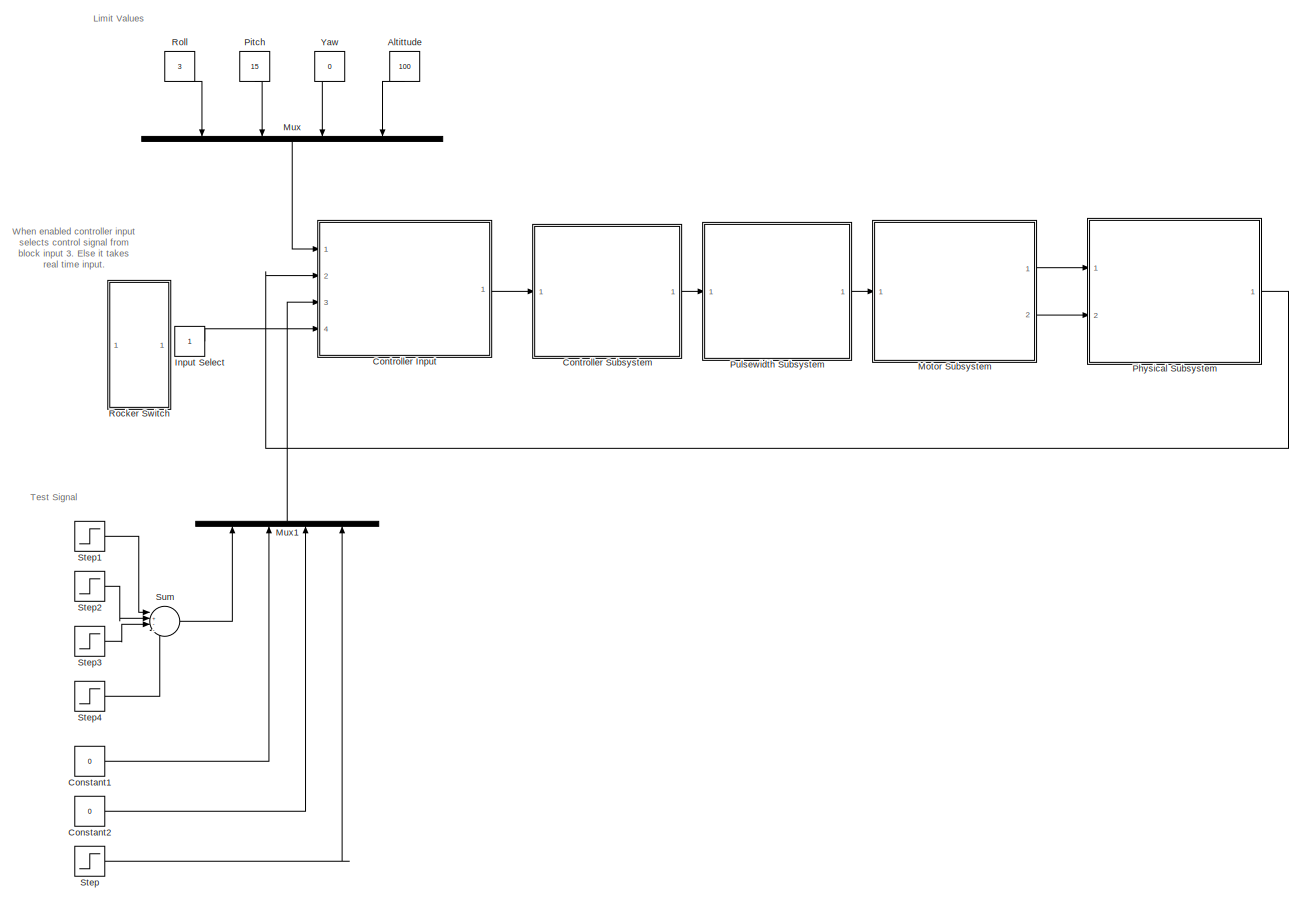
[diagram: root canvas - part 1/1, most of the canvas]
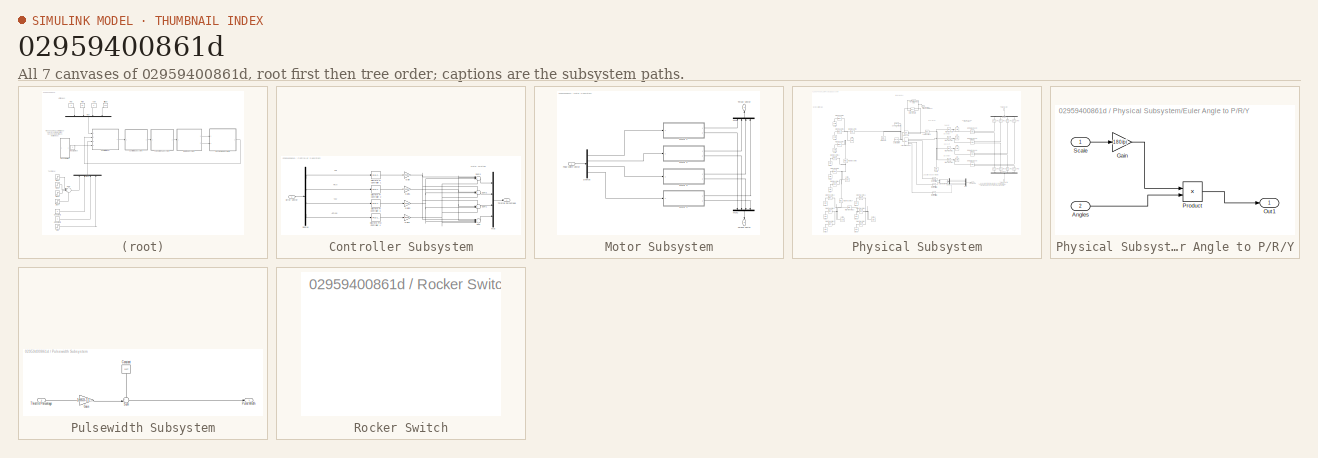
[diagram: thumbnail index - all 7 canvases of the model, root first then tree order]
MODEL slx_02959400861d
KIND model
CONFIG AbsTol = auto
CONFIG EnableMultiTasking = off
CONFIG FixedStep = auto
CONFIG MaxStep = auto
CONFIG MinStep = auto
CONFIG RelTol = 1e-3
CONFIG SampleTimeConstraint = Unconstrained
CONFIG Solver = VariableStepAuto
CONFIG SolverName = VariableStepAuto
CONFIG StartTime = 0.0
CONFIG StopTime = 50
BLOCK [Constant] Altittude
  Value = 100
BLOCK [Constant] Constant1
  Value = 0
BLOCK [Constant] Constant2
  Value = 0
BLOCK [ModelReference] Controller Input
  ModelNameDialog = Input_Model.slx
  ModelReferenceVersion = 1.20
  Ports = [4, 1]
  Variant = off
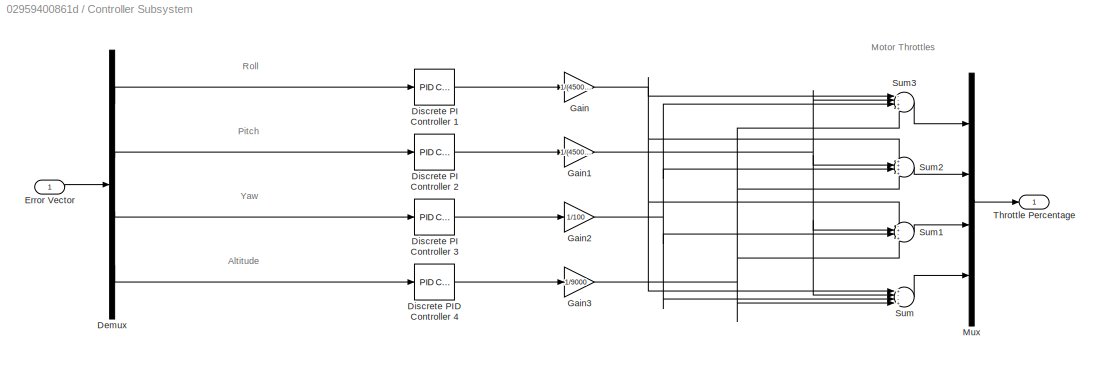
BLOCK [SubSystem] Controller Subsystem
  Ports = [1, 1]
  RequestExecContextInheritance = off
  Variant = off
BLOCK [Demux] Controller Subsystem/Demux
  DisplayOption = bar
  Ports = [1, 4]
BLOCK [Reference] Controller Subsystem/Discrete PI Controller 1  REF=simulink/Continuous/PID Controller
  Ports = [1, 1]
  SourceBlock = simulink/Continuous/PID Controller
  SourceType = PID 1dof
BLOCK [Reference] Controller Subsystem/Discrete PI Controller 2  REF=simulink/Continuous/PID Controller
  Commented = through
  Ports = [1, 1]
  SourceBlock = simulink/Continuous/PID Controller
  SourceType = PID 1dof
BLOCK [Reference] Controller Subsystem/Discrete PI Controller 3  REF=simulink/Continuous/PID Controller
  Commented = on
  Ports = [1, 1]
  SourceBlock = simulink/Continuous/PID Controller
  SourceType = PID 1dof
BLOCK [Reference] Controller Subsystem/Discrete PID Controller 4  REF=simulink/Continuous/PID Controller
  Ports = [1, 1]
  SourceBlock = simulink/Continuous/PID Controller
  SourceType = PID 1dof
BLOCK [Inport] Controller Subsystem/Error Vector
  IconDisplay = Port number
BLOCK [Gain] Controller Subsystem/Gain
  Gain = 1/(4500*2)
  OutDataTypeStr = Inherit: Inherit via internal rule
  ParamDataTypeStr = Inherit: Inherit via internal rule
  SaturateOnIntegerOverflow = off
BLOCK [Gain] Controller Subsystem/Gain1
  Commented = on
  Gain = 1/(4500*2)
  OutDataTypeStr = Inherit: Inherit via internal rule
  ParamDataTypeStr = Inherit: Inherit via internal rule
  SaturateOnIntegerOverflow = off
BLOCK [Gain] Controller Subsystem/Gain2
  Commented = on
  Gain = 1/100
  OutDataTypeStr = Inherit: Inherit via internal rule
  ParamDataTypeStr = Inherit: Inherit via internal rule
  SaturateOnIntegerOverflow = off
BLOCK [Gain] Controller Subsystem/Gain3
  Gain = 1/9000
  OutDataTypeStr = Inherit: Inherit via internal rule
  ParamDataTypeStr = Inherit: Inherit via internal rule
  SaturateOnIntegerOverflow = off
BLOCK [Mux] Controller Subsystem/Mux
  DisplayOption = bar
  Ports = [4, 1]
BLOCK [Sum] Controller Subsystem/Sum
  IconShape = round
  InputSameDT = off
  Inputs = +--+
  OutDataTypeStr = Inherit: Inherit via internal rule
  Ports = [4, 1]
  SaturateOnIntegerOverflow = off
BLOCK [Sum] Controller Subsystem/Sum1
  IconShape = round
  InputSameDT = off
  Inputs = -+-+
  OutDataTypeStr = Inherit: Inherit via internal rule
  Ports = [4, 1]
  SaturateOnIntegerOverflow = off
BLOCK [Sum] Controller Subsystem/Sum2
  IconShape = round
  InputSameDT = off
  Inputs = ++++
  OutDataTypeStr = Inherit: Inherit via internal rule
  Ports = [4, 1]
  SaturateOnIntegerOverflow = off
BLOCK [Sum] Controller Subsystem/Sum3
  IconShape = round
  InputSameDT = off
  Inputs = --++
  OutDataTypeStr = Inherit: Inherit via internal rule
  Ports = [4, 1]
  SaturateOnIntegerOverflow = off
BLOCK [Outport] Controller Subsystem/Throttle Percentage
  IconDisplay = Port number
BLOCK [Constant] Input Select
BLOCK [SubSystem] Motor Subsystem
  Ports = [1, 2]
  RequestExecContextInheritance = off
  Variant = off
BLOCK [Demux] Motor Subsystem/Demux
  DisplayOption = bar
  Ports = [1, 4]
BLOCK [ModelReference] Motor Subsystem/Motor 1
  ModelNameDialog = motor_characterization.slx
  ModelReferenceVersion = 1.11
  Ports = [1, 2]
  Variant = off
BLOCK [ModelReference] Motor Subsystem/Motor 2
  ModelNameDialog = motor_characterization.slx
  ModelReferenceVersion = 1.11
  Ports = [1, 2]
  Variant = off
BLOCK [ModelReference] Motor Subsystem/Motor 3
  ModelNameDialog = motor_characterization.slx
  ModelReferenceVersion = 1.11
  Ports = [1, 2]
  Variant = off
BLOCK [ModelReference] Motor Subsystem/Motor 4
  ModelNameDialog = motor_characterization.slx
  ModelReferenceVersion = 1.11
  Ports = [1, 2]
  Variant = off
BLOCK [Mux] Motor Subsystem/Mux
  DisplayOption = bar
  Ports = [4, 1]
BLOCK [Mux] Motor Subsystem/Mux1
  DisplayOption = bar
  Ports = [4, 1]
BLOCK [Inport] Motor Subsystem/Pulse Width Vector
  IconDisplay = Port number
BLOCK [Outport] Motor Subsystem/Thrust Vector
  IconDisplay = Port number
BLOCK [Outport] Motor Subsystem/Torque Vector
  IconDisplay = Port number
  Port = 2
BLOCK [Mux] Mux
  DisplayOption = bar
  Ports = [4, 1]
BLOCK [Mux] Mux1
  DisplayOption = bar
  Ports = [4, 1]
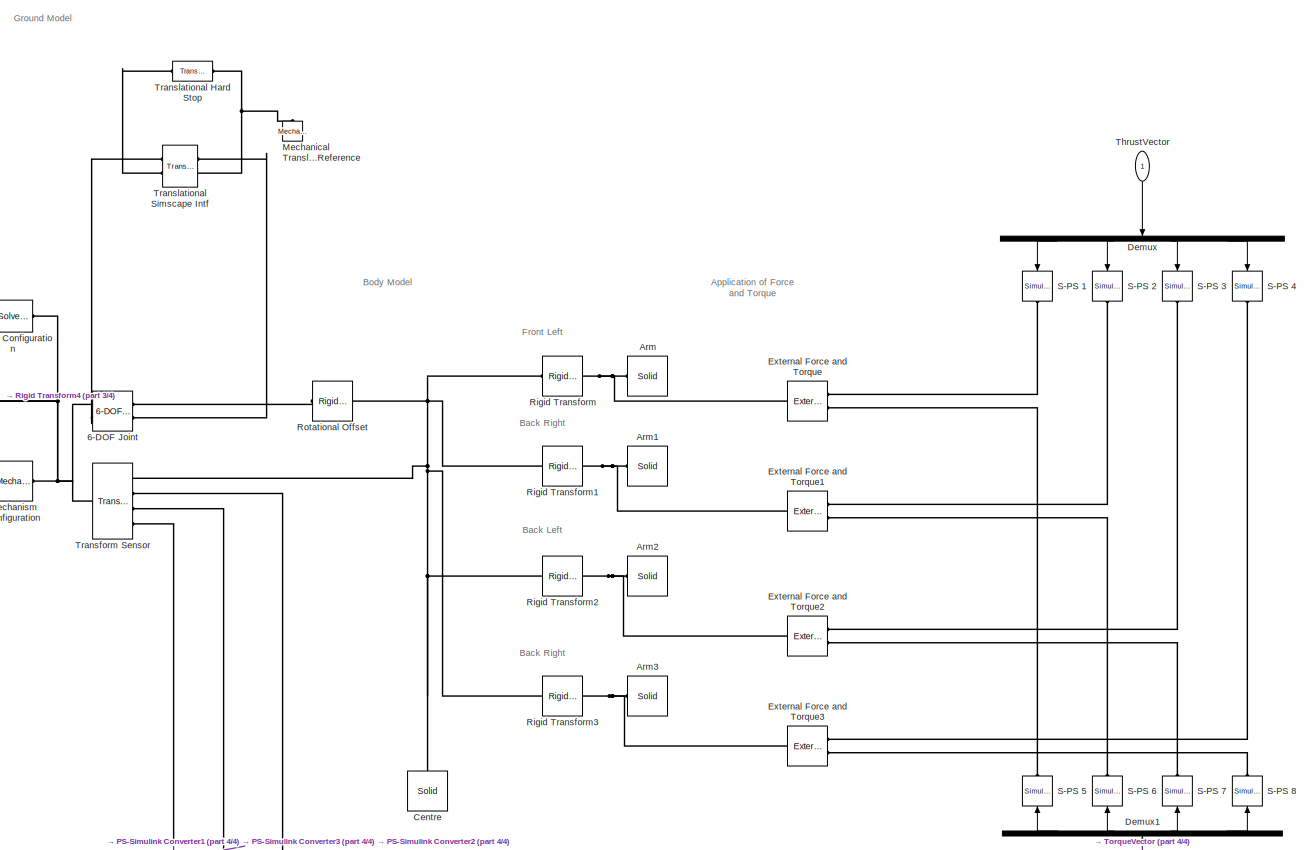
[diagram: Physical Subsystem - part 1/4, top right region]
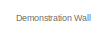
[diagram: Physical Subsystem - part 2/4, top left region]
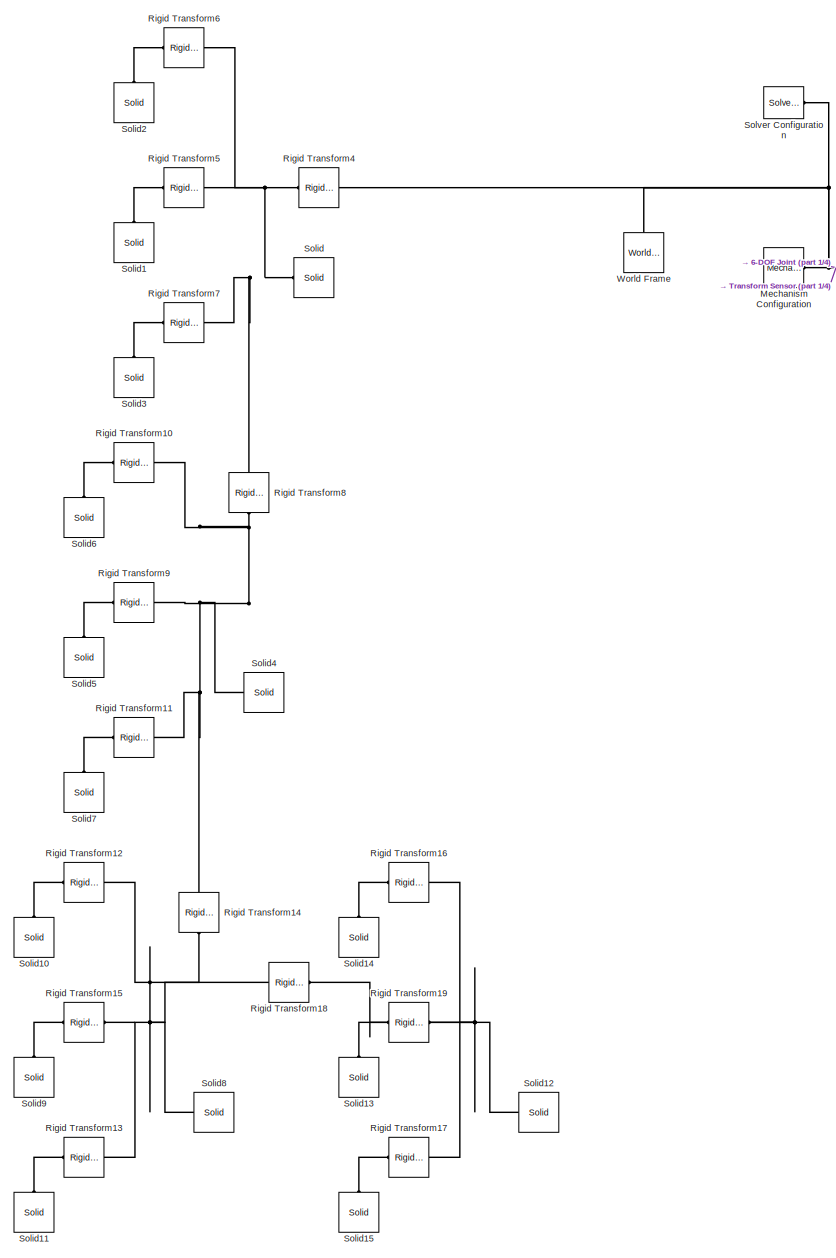
[diagram: Physical Subsystem - part 3/4, left side, full height]
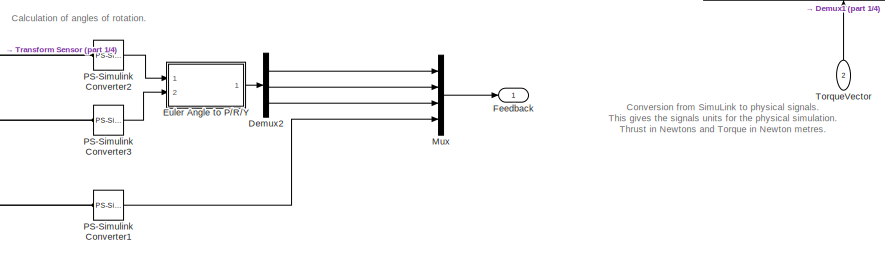
[diagram: Physical Subsystem - part 4/4, middle right region]
BLOCK [SubSystem] Physical Subsystem
  Ports = [2, 1]
  RequestExecContextInheritance = off
  Variant = off
BLOCK [Reference] Physical Subsystem/6-DOF Joint  REF=sm_lib/Joints/6-DOF Joint
  Ports = [0, 0, 0, 0, 0, 2, 2]
  SourceBlock = sm_lib/Joints/6-DOF Joint
  SourceType = 6-DOF Joint
BLOCK [Reference] Physical Subsystem/Arm  REF=sm_lib/Body Elements/Solid
  Ports = [0, 0, 0, 0, 0, 0, 1]
  SourceBlock = sm_lib/Body Elements/Solid
  SourceType = Solid
BLOCK [Reference] Physical Subsystem/Arm1  REF=sm_lib/Body Elements/Solid
  Ports = [0, 0, 0, 0, 0, 0, 1]
  SourceBlock = sm_lib/Body Elements/Solid
  SourceType = Solid
BLOCK [Reference] Physical Subsystem/Arm2  REF=sm_lib/Body Elements/Solid
  Ports = [0, 0, 0, 0, 0, 0, 1]
  SourceBlock = sm_lib/Body Elements/Solid
  SourceType = Solid
BLOCK [Reference] Physical Subsystem/Arm3  REF=sm_lib/Body Elements/Solid
  Ports = [0, 0, 0, 0, 0, 0, 1]
  SourceBlock = sm_lib/Body Elements/Solid
  SourceType = Solid
BLOCK [Reference] Physical Subsystem/Centre  REF=sm_lib/Body Elements/Solid
  Ports = [0, 0, 0, 0, 0, 0, 1]
  SourceBlock = sm_lib/Body Elements/Solid
  SourceType = Solid
BLOCK [Demux] Physical Subsystem/Demux
  DisplayOption = bar
  Ports = [1, 4]
BLOCK [Demux] Physical Subsystem/Demux1
  DisplayOption = bar
  Ports = [1, 4]
BLOCK [Demux] Physical Subsystem/Demux2
  DisplayOption = bar
  Outputs = 3
  Ports = [1, 3]
BLOCK [SubSystem] Physical Subsystem/Euler Angle to P//R//Y
  Ports = [2, 1]
  RequestExecContextInheritance = off
  Variant = off
BLOCK [Inport] Physical Subsystem/Euler Angle to P//R//Y/Angles
  IconDisplay = Port number
  Port = 2
BLOCK [Gain] Physical Subsystem/Euler Angle to P//R//Y/Gain
  Gain = 180/pi
  OutDataTypeStr = Inherit: Inherit via internal rule
  ParamDataTypeStr = Inherit: Inherit via internal rule
  SaturateOnIntegerOverflow = off
BLOCK [Outport] Physical Subsystem/Euler Angle to P//R//Y/Out1
  IconDisplay = Port number
BLOCK [Product] Physical Subsystem/Euler Angle to P//R//Y/Product
  InputSameDT = off
  OutDataTypeStr = Inherit: Inherit via internal rule
  Ports = [2, 1]
  RndMeth = Floor
  SaturateOnIntegerOverflow = off
BLOCK [Inport] Physical Subsystem/Euler Angle to P//R//Y/Scale
  IconDisplay = Port number
BLOCK [Reference] Physical Subsystem/External Force and Torque  REF=sm_lib/Forces and
Torques/External Force
and Torque
  Ports = [0, 0, 0, 0, 0, 2, 1]
  SourceBlock = sm_lib/Forces and\nTorques/External Force\nand Torque
  SourceType = External Force\nand Torque
BLOCK [Reference] Physical Subsystem/External Force and Torque1  REF=sm_lib/Forces and
Torques/External Force
and Torque
  Ports = [0, 0, 0, 0, 0, 2, 1]
  SourceBlock = sm_lib/Forces and\nTorques/External Force\nand Torque
  SourceType = External Force\nand Torque
BLOCK [Reference] Physical Subsystem/External Force and Torque2  REF=sm_lib/Forces and
Torques/External Force
and Torque
  Ports = [0, 0, 0, 0, 0, 2, 1]
  SourceBlock = sm_lib/Forces and\nTorques/External Force\nand Torque
  SourceType = External Force\nand Torque
BLOCK [Reference] Physical Subsystem/External Force and Torque3  REF=sm_lib/Forces and
Torques/External Force
and Torque
  Ports = [0, 0, 0, 0, 0, 2, 1]
  SourceBlock = sm_lib/Forces and\nTorques/External Force\nand Torque
  SourceType = External Force\nand Torque
BLOCK [Outport] Physical Subsystem/Feedback
  IconDisplay = Port number
BLOCK [Reference] Physical Subsystem/Mechanical Translational Reference  REF=fl_lib/Mechanical/Translational
Elements/Mechanical
Translational
Reference
  Ports = [0, 0, 0, 0, 0, 1]
  SourceBlock = fl_lib/Mechanical/Translational\nElements/Mechanical\nTranslational\nReference
  SourceType = Mechanical\nTranslational\nReference
BLOCK [Reference] Physical Subsystem/Mechanism Configuration  REF=sm_lib/Utilities/Mechanism
Configuration
  Ports = [0, 0, 0, 0, 0, 0, 1]
  SourceBlock = sm_lib/Utilities/Mechanism\nConfiguration
  SourceType = Mechanism\nConfiguration
BLOCK [Mux] Physical Subsystem/Mux
  DisplayOption = bar
  Ports = [4, 1]
BLOCK [Reference] Physical Subsystem/PS-Simulink Converter1  REF=nesl_utility/PS-Simulink
Converter
  Ports = [0, 1, 0, 0, 0, 1]
  SourceBlock = nesl_utility/PS-Simulink\nConverter
  SourceType = PS-Simulink\nConverter
BLOCK [Reference] Physical Subsystem/PS-Simulink Converter2  REF=nesl_utility/PS-Simulink
Converter
  Ports = [0, 1, 0, 0, 0, 1]
  SourceBlock = nesl_utility/PS-Simulink\nConverter
  SourceType = PS-Simulink\nConverter
BLOCK [Reference] Physical Subsystem/PS-Simulink Converter3  REF=nesl_utility/PS-Simulink
Converter
  Ports = [0, 1, 0, 0, 0, 1]
  SourceBlock = nesl_utility/PS-Simulink\nConverter
  SourceType = PS-Simulink\nConverter
BLOCK [Reference] Physical Subsystem/Rigid Transform  REF=sm_lib/Frames and
Transforms/Rigid
Transform
  Ports = [0, 0, 0, 0, 0, 1, 1]
  SourceBlock = sm_lib/Frames and\nTransforms/Rigid\nTransform
  SourceType = Rigid\nTransform
BLOCK [Reference] Physical Subsystem/Rigid Transform1  REF=sm_lib/Frames and
Transforms/Rigid
Transform
  Ports = [0, 0, 0, 0, 0, 1, 1]
  SourceBlock = sm_lib/Frames and\nTransforms/Rigid\nTransform
  SourceType = Rigid\nTransform
BLOCK [Reference] Physical Subsystem/Rigid Transform10  REF=sm_lib/Frames and
Transforms/Rigid
Transform
  Ports = [0, 0, 0, 0, 0, 1, 1]
  SourceBlock = sm_lib/Frames and\nTransforms/Rigid\nTransform
  SourceType = Rigid\nTransform
BLOCK [Reference] Physical Subsystem/Rigid Transform11  REF=sm_lib/Frames and
Transforms/Rigid
Transform
  Ports = [0, 0, 0, 0, 0, 1, 1]
  SourceBlock = sm_lib/Frames and\nTransforms/Rigid\nTransform
  SourceType = Rigid\nTransform
BLOCK [Reference] Physical Subsystem/Rigid Transform12  REF=sm_lib/Frames and
Transforms/Rigid
Transform
  Ports = [0, 0, 0, 0, 0, 1, 1]
  SourceBlock = sm_lib/Frames and\nTransforms/Rigid\nTransform
  SourceType = Rigid\nTransform
BLOCK [Reference] Physical Subsystem/Rigid Transform13  REF=sm_lib/Frames and
Transforms/Rigid
Transform
  Ports = [0, 0, 0, 0, 0, 1, 1]
  SourceBlock = sm_lib/Frames and\nTransforms/Rigid\nTransform
  SourceType = Rigid\nTransform
BLOCK [Reference] Physical Subsystem/Rigid Transform14  REF=sm_lib/Frames and
Transforms/Rigid
Transform
  Ports = [0, 0, 0, 0, 0, 1, 1]
  SourceBlock = sm_lib/Frames and\nTransforms/Rigid\nTransform
  SourceType = Rigid\nTransform
BLOCK [Reference] Physical Subsystem/Rigid Transform15  REF=sm_lib/Frames and
Transforms/Rigid
Transform
  Ports = [0, 0, 0, 0, 0, 1, 1]
  SourceBlock = sm_lib/Frames and\nTransforms/Rigid\nTransform
  SourceType = Rigid\nTransform
BLOCK [Reference] Physical Subsystem/Rigid Transform16  REF=sm_lib/Frames and
Transforms/Rigid
Transform
  Ports = [0, 0, 0, 0, 0, 1, 1]
  SourceBlock = sm_lib/Frames and\nTransforms/Rigid\nTransform
  SourceType = Rigid\nTransform
BLOCK [Reference] Physical Subsystem/Rigid Transform17  REF=sm_lib/Frames and
Transforms/Rigid
Transform
  Ports = [0, 0, 0, 0, 0, 1, 1]
  SourceBlock = sm_lib/Frames and\nTransforms/Rigid\nTransform
  SourceType = Rigid\nTransform
BLOCK [Reference] Physical Subsystem/Rigid Transform18  REF=sm_lib/Frames and
Transforms/Rigid
Transform
  Ports = [0, 0, 0, 0, 0, 1, 1]
  SourceBlock = sm_lib/Frames and\nTransforms/Rigid\nTransform
  SourceType = Rigid\nTransform
BLOCK [Reference] Physical Subsystem/Rigid Transform19  REF=sm_lib/Frames and
Transforms/Rigid
Transform
  Ports = [0, 0, 0, 0, 0, 1, 1]
  SourceBlock = sm_lib/Frames and\nTransforms/Rigid\nTransform
  SourceType = Rigid\nTransform
BLOCK [Reference] Physical Subsystem/Rigid Transform2  REF=sm_lib/Frames and
Transforms/Rigid
Transform
  Ports = [0, 0, 0, 0, 0, 1, 1]
  SourceBlock = sm_lib/Frames and\nTransforms/Rigid\nTransform
  SourceType = Rigid\nTransform
BLOCK [Reference] Physical Subsystem/Rigid Transform3  REF=sm_lib/Frames and
Transforms/Rigid
Transform
  Ports = [0, 0, 0, 0, 0, 1, 1]
  SourceBlock = sm_lib/Frames and\nTransforms/Rigid\nTransform
  SourceType = Rigid\nTransform
BLOCK [Reference] Physical Subsystem/Rigid Transform4  REF=sm_lib/Frames and
Transforms/Rigid
Transform
  Ports = [0, 0, 0, 0, 0, 1, 1]
  SourceBlock = sm_lib/Frames and\nTransforms/Rigid\nTransform
  SourceType = Rigid\nTransform
BLOCK [Reference] Physical Subsystem/Rigid Transform5  REF=sm_lib/Frames and
Transforms/Rigid
Transform
  Ports = [0, 0, 0, 0, 0, 1, 1]
  SourceBlock = sm_lib/Frames and\nTransforms/Rigid\nTransform
  SourceType = Rigid\nTransform
BLOCK [Reference] Physical Subsystem/Rigid Transform6  REF=sm_lib/Frames and
Transforms/Rigid
Transform
  Ports = [0, 0, 0, 0, 0, 1, 1]
  SourceBlock = sm_lib/Frames and\nTransforms/Rigid\nTransform
  SourceType = Rigid\nTransform
BLOCK [Reference] Physical Subsystem/Rigid Transform7  REF=sm_lib/Frames and
Transforms/Rigid
Transform
  Ports = [0, 0, 0, 0, 0, 1, 1]
  SourceBlock = sm_lib/Frames and\nTransforms/Rigid\nTransform
  SourceType = Rigid\nTransform
BLOCK [Reference] Physical Subsystem/Rigid Transform8  REF=sm_lib/Frames and
Transforms/Rigid
Transform
  Ports = [0, 0, 0, 0, 0, 1, 1]
  SourceBlock = sm_lib/Frames and\nTransforms/Rigid\nTransform
  SourceType = Rigid\nTransform
BLOCK [Reference] Physical Subsystem/Rigid Transform9  REF=sm_lib/Frames and
Transforms/Rigid
Transform
  Ports = [0, 0, 0, 0, 0, 1, 1]
  SourceBlock = sm_lib/Frames and\nTransforms/Rigid\nTransform
  SourceType = Rigid\nTransform
BLOCK [Reference] Physical Subsystem/Rotational Offset  REF=sm_lib/Frames and
Transforms/Rigid
Transform
  Ports = [0, 0, 0, 0, 0, 1, 1]
  SourceBlock = sm_lib/Frames and\nTransforms/Rigid\nTransform
  SourceType = Rigid\nTransform
BLOCK [Reference] Physical Subsystem/S-PS 1  REF=nesl_utility/Simulink-PS
Converter
  Ports = [1, 0, 0, 0, 0, 0, 1]
  SourceBlock = nesl_utility/Simulink-PS\nConverter
  SourceType = Simulink-PS\nConverter
BLOCK [Reference] Physical Subsystem/S-PS 2  REF=nesl_utility/Simulink-PS
Converter
  Ports = [1, 0, 0, 0, 0, 0, 1]
  SourceBlock = nesl_utility/Simulink-PS\nConverter
  SourceType = Simulink-PS\nConverter
BLOCK [Reference] Physical Subsystem/S-PS 3  REF=nesl_utility/Simulink-PS
Converter
  Ports = [1, 0, 0, 0, 0, 0, 1]
  SourceBlock = nesl_utility/Simulink-PS\nConverter
  SourceType = Simulink-PS\nConverter
BLOCK [Reference] Physical Subsystem/S-PS 4  REF=nesl_utility/Simulink-PS
Converter
  Ports = [1, 0, 0, 0, 0, 0, 1]
  SourceBlock = nesl_utility/Simulink-PS\nConverter
  SourceType = Simulink-PS\nConverter
BLOCK [Reference] Physical Subsystem/S-PS 5  REF=nesl_utility/Simulink-PS
Converter
  Ports = [1, 0, 0, 0, 0, 0, 1]
  SourceBlock = nesl_utility/Simulink-PS\nConverter
  SourceType = Simulink-PS\nConverter
BLOCK [Reference] Physical Subsystem/S-PS 6  REF=nesl_utility/Simulink-PS
Converter
  Ports = [1, 0, 0, 0, 0, 0, 1]
  SourceBlock = nesl_utility/Simulink-PS\nConverter
  SourceType = Simulink-PS\nConverter
BLOCK [Reference] Physical Subsystem/S-PS 7  REF=nesl_utility/Simulink-PS
Converter
  Ports = [1, 0, 0, 0, 0, 0, 1]
  SourceBlock = nesl_utility/Simulink-PS\nConverter
  SourceType = Simulink-PS\nConverter
BLOCK [Reference] Physical Subsystem/S-PS 8  REF=nesl_utility/Simulink-PS
Converter
  Ports = [1, 0, 0, 0, 0, 0, 1]
  SourceBlock = nesl_utility/Simulink-PS\nConverter
  SourceType = Simulink-PS\nConverter
BLOCK [Reference] Physical Subsystem/Solid  REF=sm_lib/Body Elements/Solid
  Ports = [0, 0, 0, 0, 0, 0, 1]
  SourceBlock = sm_lib/Body Elements/Solid
  SourceType = Solid
BLOCK [Reference] Physical Subsystem/Solid1  REF=sm_lib/Body Elements/Solid
  Ports = [0, 0, 0, 0, 0, 0, 1]
  SourceBlock = sm_lib/Body Elements/Solid
  SourceType = Solid
BLOCK [Reference] Physical Subsystem/Solid10  REF=sm_lib/Body Elements/Solid
  Ports = [0, 0, 0, 0, 0, 0, 1]
  SourceBlock = sm_lib/Body Elements/Solid
  SourceType = Solid
BLOCK [Reference] Physical Subsystem/Solid11  REF=sm_lib/Body Elements/Solid
  Ports = [0, 0, 0, 0, 0, 0, 1]
  SourceBlock = sm_lib/Body Elements/Solid
  SourceType = Solid
BLOCK [Reference] Physical Subsystem/Solid12  REF=sm_lib/Body Elements/Solid
  Ports = [0, 0, 0, 0, 0, 0, 1]
  SourceBlock = sm_lib/Body Elements/Solid
  SourceType = Solid
BLOCK [Reference] Physical Subsystem/Solid13  REF=sm_lib/Body Elements/Solid
  Ports = [0, 0, 0, 0, 0, 0, 1]
  SourceBlock = sm_lib/Body Elements/Solid
  SourceType = Solid
BLOCK [Reference] Physical Subsystem/Solid14  REF=sm_lib/Body Elements/Solid
  Ports = [0, 0, 0, 0, 0, 0, 1]
  SourceBlock = sm_lib/Body Elements/Solid
  SourceType = Solid
BLOCK [Reference] Physical Subsystem/Solid15  REF=sm_lib/Body Elements/Solid
  Ports = [0, 0, 0, 0, 0, 0, 1]
  SourceBlock = sm_lib/Body Elements/Solid
  SourceType = Solid
BLOCK [Reference] Physical Subsystem/Solid2  REF=sm_lib/Body Elements/Solid
  Ports = [0, 0, 0, 0, 0, 0, 1]
  SourceBlock = sm_lib/Body Elements/Solid
  SourceType = Solid
BLOCK [Reference] Physical Subsystem/Solid3  REF=sm_lib/Body Elements/Solid
  Ports = [0, 0, 0, 0, 0, 0, 1]
  SourceBlock = sm_lib/Body Elements/Solid
  SourceType = Solid
BLOCK [Reference] Physical Subsystem/Solid4  REF=sm_lib/Body Elements/Solid
  Ports = [0, 0, 0, 0, 0, 0, 1]
  SourceBlock = sm_lib/Body Elements/Solid
  SourceType = Solid
BLOCK [Reference] Physical Subsystem/Solid5  REF=sm_lib/Body Elements/Solid
  Ports = [0, 0, 0, 0, 0, 0, 1]
  SourceBlock = sm_lib/Body Elements/Solid
  SourceType = Solid
BLOCK [Reference] Physical Subsystem/Solid6  REF=sm_lib/Body Elements/Solid
  Ports = [0, 0, 0, 0, 0, 0, 1]
  SourceBlock = sm_lib/Body Elements/Solid
  SourceType = Solid
BLOCK [Reference] Physical Subsystem/Solid7  REF=sm_lib/Body Elements/Solid
  Ports = [0, 0, 0, 0, 0, 0, 1]
  SourceBlock = sm_lib/Body Elements/Solid
  SourceType = Solid
BLOCK [Reference] Physical Subsystem/Solid8  REF=sm_lib/Body Elements/Solid
  Ports = [0, 0, 0, 0, 0, 0, 1]
  SourceBlock = sm_lib/Body Elements/Solid
  SourceType = Solid
BLOCK [Reference] Physical Subsystem/Solid9  REF=sm_lib/Body Elements/Solid
  Ports = [0, 0, 0, 0, 0, 0, 1]
  SourceBlock = sm_lib/Body Elements/Solid
  SourceType = Solid
BLOCK [Reference] Physical Subsystem/Solver Configuration  REF=nesl_utility/Solver
Configuration
  Ports = [0, 0, 0, 0, 0, 0, 1]
  SourceBlock = nesl_utility/Solver\nConfiguration
  SourceType = Solver\nConfiguration
BLOCK [Inport] Physical Subsystem/ThrustVector
  IconDisplay = Port number
BLOCK [Inport] Physical Subsystem/TorqueVector
  IconDisplay = Port number
  Port = 2
BLOCK [Reference] Physical Subsystem/Transform Sensor  REF=sm_lib/Frames and
Transforms/Transform
Sensor
  Ports = [0, 0, 0, 0, 0, 1, 4]
  SourceBlock = sm_lib/Frames and\nTransforms/Transform\nSensor
  SourceType = Transform\nSensor
BLOCK [Reference] Physical Subsystem/Translational Hard Stop  REF=fl_lib/Mechanical/Translational
Elements/Translational Hard
Stop
  Ports = [0, 0, 0, 0, 0, 1, 1]
  SourceBlock = fl_lib/Mechanical/Translational\nElements/Translational Hard\nStop
  SourceType = Translational Hard\nStop
BLOCK [Reference] Physical Subsystem/Translational Simscape Intf  REF=multibody_3D_1D_intf_lib/Translational
Simscape Intf
  Ports = [0, 0, 0, 0, 0, 2, 2]
  SourceBlock = multibody_3D_1D_intf_lib/Translational\nSimscape Intf
  SourceType = SubSystem
BLOCK [Reference] Physical Subsystem/World Frame  REF=sm_lib/Frames and
Transforms/World Frame
  Ports = [0, 0, 0, 0, 0, 0, 1]
  SourceBlock = sm_lib/Frames and\nTransforms/World Frame
  SourceType = World Frame
BLOCK [Constant] Pitch
  Value = 15
BLOCK [SubSystem] Pulsewidth Subsystem
  Ports = [1, 1]
  RequestExecContextInheritance = off
  Variant = off
BLOCK [Constant] Pulsewidth Subsystem/Constant
  Value = 1127
BLOCK [Gain] Pulsewidth Subsystem/Gain
  Gain = 1860-1127
  OutDataTypeStr = Inherit: Inherit via internal rule
  ParamDataTypeStr = Inherit: Inherit via internal rule
  SaturateOnIntegerOverflow = off
BLOCK [Outport] Pulsewidth Subsystem/Pulse Width
  IconDisplay = Port number
BLOCK [Sum] Pulsewidth Subsystem/Sum
  IconShape = round
  InputSameDT = off
  Inputs = ++|
  OutDataTypeStr = Inherit: Inherit via internal rule
  Ports = [2, 1]
  SaturateOnIntegerOverflow = off
BLOCK [Inport] Pulsewidth Subsystem/Throttle Percentage
  IconDisplay = Port number
BLOCK [SubSystem] Rocker Switch
  DialogController = hmiCreateDDGDialog
  IsWebBlock = on
  MaskHideContents = on
  Ports = []
  RequestExecContextInheritance = off
  Variant = off
BLOCK [Constant] Roll
  Value = 3
BLOCK [Step] Step
  After = 0.0075
  SampleTime = 0
BLOCK [Step] Step1
  SampleTime = 0
  Time = 10
BLOCK [Step] Step2
  SampleTime = 0
  Time = 10.5
BLOCK [Step] Step3
  SampleTime = 0
  Time = 12
BLOCK [Step] Step4
  SampleTime = 0
  Time = 12.5
BLOCK [Sum] Sum
  IconShape = round
  InputSameDT = off
  Inputs = |+--+
  OutDataTypeStr = Inherit: Inherit via internal rule
  Ports = [4, 1]
  SaturateOnIntegerOverflow = off
BLOCK [Constant] Yaw
  Value = 0
ANNOTATION (root): Limit Values
ANNOTATION (root): Test Signal
ANNOTATION (root): When enabled controller input selects control signal from block input 3. Else it takes real time input.
ANNOTATION Controller Subsystem: Altitude
ANNOTATION Controller Subsystem: Motor Throttles
ANNOTATION Controller Subsystem: Pitch
ANNOTATION Controller Subsystem: Roll
ANNOTATION Controller Subsystem: Yaw
ANNOTATION Physical Subsystem: Application of Force and Torque
ANNOTATION Physical Subsystem: Back Left
ANNOTATION Physical Subsystem: Back Right
ANNOTATION Physical Subsystem: Body Model
ANNOTATION Physical Subsystem: Calculation of angles of rotation.
ANNOTATION Physical Subsystem: Conversion from SimuLink to physical signals. This gives the signals units for the physical simulation. Thrust in Newtons and Torque in Newton metres.
ANNOTATION Physical Subsystem: Demonstration Wall
ANNOTATION Physical Subsystem: Front Left
ANNOTATION Physical Subsystem: Ground Model
LINE Altittude:1 -> Mux:4
LINE Constant1:1 -> Mux1:2
LINE Constant2:1 -> Mux1:3
LINE Controller Input:1 -> Controller Subsystem:1
LINE Controller Subsystem/Demux:1 -> Controller Subsystem/Discrete PI Controller 1:1
LINE Controller Subsystem/Demux:2 -> Controller Subsystem/Discrete PI Controller 2:1
LINE Controller Subsystem/Demux:3 -> Controller Subsystem/Discrete PI Controller 3:1
LINE Controller Subsystem/Demux:4 -> Controller Subsystem/Discrete PID Controller 4:1
LINE Controller Subsystem/Discrete PI Controller 1:1 -> Controller Subsystem/Gain:1
LINE Controller Subsystem/Discrete PI Controller 2:1 -> Controller Subsystem/Gain1:1
LINE Controller Subsystem/Discrete PI Controller 3:1 -> Controller Subsystem/Gain2:1
LINE Controller Subsystem/Discrete PID Controller 4:1 -> Controller Subsystem/Gain3:1
LINE Controller Subsystem/Error Vector:1 -> Controller Subsystem/Demux:1
NET Controller Subsystem/Gain1:1 -> Controller Subsystem/Sum1:2, Controller Subsystem/Sum2:2, Controller Subsystem/Sum3:2, Controller Subsystem/Sum:2
NET Controller Subsystem/Gain2:1 -> Controller Subsystem/Sum1:3, Controller Subsystem/Sum2:3, Controller Subsystem/Sum3:3, Controller Subsystem/Sum:3
NET Controller Subsystem/Gain3:1 -> Controller Subsystem/Sum1:4, Controller Subsystem/Sum2:4, Controller Subsystem/Sum3:4, Controller Subsystem/Sum:4
NET Controller Subsystem/Gain:1 -> Controller Subsystem/Sum1:1, Controller Subsystem/Sum2:1, Controller Subsystem/Sum3:1, Controller Subsystem/Sum:1
LINE Controller Subsystem/Mux:1 -> Controller Subsystem/Throttle Percentage:1
LINE Controller Subsystem/Sum1:1 -> Controller Subsystem/Mux:3
LINE Controller Subsystem/Sum2:1 -> Controller Subsystem/Mux:2
LINE Controller Subsystem/Sum3:1 -> Controller Subsystem/Mux:1
LINE Controller Subsystem/Sum:1 -> Controller Subsystem/Mux:4
LINE Controller Subsystem:1 -> Pulsewidth Subsystem:1
LINE Input Select:1 -> Controller Input:4
LINE Motor Subsystem/Demux:1 -> Motor Subsystem/Motor 1:1
LINE Motor Subsystem/Demux:2 -> Motor Subsystem/Motor 2:1
LINE Motor Subsystem/Demux:3 -> Motor Subsystem/Motor 3:1
LINE Motor Subsystem/Demux:4 -> Motor Subsystem/Motor 4:1
LINE Motor Subsystem/Motor 1:1 -> Motor Subsystem/Mux:1
LINE Motor Subsystem/Motor 1:2 -> Motor Subsystem/Mux1:1
LINE Motor Subsystem/Motor 2:1 -> Motor Subsystem/Mux:2
LINE Motor Subsystem/Motor 2:2 -> Motor Subsystem/Mux1:2
LINE Motor Subsystem/Motor 3:1 -> Motor Subsystem/Mux:3
LINE Motor Subsystem/Motor 3:2 -> Motor Subsystem/Mux1:3
LINE Motor Subsystem/Motor 4:1 -> Motor Subsystem/Mux:4
LINE Motor Subsystem/Motor 4:2 -> Motor Subsystem/Mux1:4
LINE Motor Subsystem/Mux1:1 -> Motor Subsystem/Torque Vector:1
LINE Motor Subsystem/Mux:1 -> Motor Subsystem/Thrust Vector:1
LINE Motor Subsystem/Pulse Width Vector:1 -> Motor Subsystem/Demux:1
LINE Motor Subsystem:1 -> Physical Subsystem:1
LINE Motor Subsystem:2 -> Physical Subsystem:2
LINE Mux1:1 -> Controller Input:3
LINE Mux:1 -> Controller Input:1
LINE Physical Subsystem/Demux1:1 -> Physical Subsystem/S-PS 5:1
LINE Physical Subsystem/Demux1:2 -> Physical Subsystem/S-PS 6:1
LINE Physical Subsystem/Demux1:3 -> Physical Subsystem/S-PS 7:1
LINE Physical Subsystem/Demux1:4 -> Physical Subsystem/S-PS 8:1
LINE Physical Subsystem/Demux2:1 -> Physical Subsystem/Mux:1
LINE Physical Subsystem/Demux2:2 -> Physical Subsystem/Mux:2
LINE Physical Subsystem/Demux2:3 -> Physical Subsystem/Mux:3
LINE Physical Subsystem/Demux:1 -> Physical Subsystem/S-PS 1:1
LINE Physical Subsystem/Demux:2 -> Physical Subsystem/S-PS 2:1
LINE Physical Subsystem/Demux:3 -> Physical Subsystem/S-PS 3:1
LINE Physical Subsystem/Demux:4 -> Physical Subsystem/S-PS 4:1
LINE Physical Subsystem/Euler Angle to P//R//Y/Angles:1 -> Physical Subsystem/Euler Angle to P//R//Y/Product:2
LINE Physical Subsystem/Euler Angle to P//R//Y/Gain:1 -> Physical Subsystem/Euler Angle to P//R//Y/Product:1
LINE Physical Subsystem/Euler Angle to P//R//Y/Product:1 -> Physical Subsystem/Euler Angle to P//R//Y/Out1:1
LINE Physical Subsystem/Euler Angle to P//R//Y/Scale:1 -> Physical Subsystem/Euler Angle to P//R//Y/Gain:1
LINE Physical Subsystem/Euler Angle to P//R//Y:1 -> Physical Subsystem/Demux2:1
LINE Physical Subsystem/Mux:1 -> Physical Subsystem/Feedback:1
LINE Physical Subsystem/PS-Simulink Converter1:1 -> Physical Subsystem/Mux:4
LINE Physical Subsystem/PS-Simulink Converter2:1 -> Physical Subsystem/Euler Angle to P//R//Y:1
LINE Physical Subsystem/PS-Simulink Converter3:1 -> Physical Subsystem/Euler Angle to P//R//Y:2
LINE Physical Subsystem/ThrustVector:1 -> Physical Subsystem/Demux:1
LINE Physical Subsystem/TorqueVector:1 -> Physical Subsystem/Demux1:1
LINE Physical Subsystem:1 -> Controller Input:2
LINE Pitch:1 -> Mux:2
LINE Pulsewidth Subsystem/Constant:1 -> Pulsewidth Subsystem/Sum:1
LINE Pulsewidth Subsystem/Gain:1 -> Pulsewidth Subsystem/Sum:2
LINE Pulsewidth Subsystem/Sum:1 -> Pulsewidth Subsystem/Pulse Width:1
LINE Pulsewidth Subsystem/Throttle Percentage:1 -> Pulsewidth Subsystem/Gain:1
LINE Pulsewidth Subsystem:1 -> Motor Subsystem:1
LINE Roll:1 -> Mux:1
LINE Step1:1 -> Sum:1
LINE Step2:1 -> Sum:2
LINE Step3:1 -> Sum:3
LINE Step4:1 -> Sum:4
LINE Step:1 -> Mux1:4
LINE Sum:1 -> Mux1:1
LINE Yaw:1 -> Mux:3
PNET net1: Physical Subsystem/6-DOF Joint:LConn1 -- Physical Subsystem/Mechanism Configuration:RConn1 -- Physical Subsystem/Rigid Transform4:LConn1 -- Physical Subsystem/Solver Configuration:RConn1 -- Physical Subsystem/Transform Sensor:LConn1 -- Physical Subsystem/World Frame:RConn1
PLINE Physical Subsystem/6-DOF Joint:LConn2 -- Physical Subsystem/Translational Simscape Intf:LConn1
PLINE Physical Subsystem/6-DOF Joint:RConn1 -- Physical Subsystem/Rotational Offset:LConn1
PLINE Physical Subsystem/6-DOF Joint:RConn2 -- Physical Subsystem/Translational Simscape Intf:RConn1
PNET net2: Physical Subsystem/Arm1:RConn1 -- Physical Subsystem/External Force and Torque1:RConn1 -- Physical Subsystem/Rigid Transform1:RConn1
PNET net3: Physical Subsystem/Arm2:RConn1 -- Physical Subsystem/External Force and Torque2:RConn1 -- Physical Subsystem/Rigid Transform2:RConn1
PNET net4: Physical Subsystem/Arm3:RConn1 -- Physical Subsystem/External Force and Torque3:RConn1 -- Physical Subsystem/Rigid Transform3:RConn1
PNET net5: Physical Subsystem/Arm:RConn1 -- Physical Subsystem/External Force and Torque:RConn1 -- Physical Subsystem/Rigid Transform:RConn1
PNET net6: Physical Subsystem/Centre:RConn1 -- Physical Subsystem/Rigid Transform1:LConn1 -- Physical Subsystem/Rigid Transform2:LConn1 -- Physical Subsystem/Rigid Transform3:LConn1 -- Physical Subsystem/Rigid Transform:LConn1 -- Physical Subsystem/Rotational Offset:RConn1 -- Physical Subsystem/Transform Sensor:RConn1
PLINE Physical Subsystem/External Force and Torque1:LConn1 -- Physical Subsystem/S-PS 2:RConn1
PLINE Physical Subsystem/External Force and Torque1:LConn2 -- Physical Subsystem/S-PS 6:RConn1
PLINE Physical Subsystem/External Force and Torque2:LConn1 -- Physical Subsystem/S-PS 3:RConn1
PLINE Physical Subsystem/External Force and Torque2:LConn2 -- Physical Subsystem/S-PS 7:RConn1
PLINE Physical Subsystem/External Force and Torque3:LConn1 -- Physical Subsystem/S-PS 4:RConn1
PLINE Physical Subsystem/External Force and Torque3:LConn2 -- Physical Subsystem/S-PS 8:RConn1
PLINE Physical Subsystem/External Force and Torque:LConn1 -- Physical Subsystem/S-PS 1:RConn1
PLINE Physical Subsystem/External Force and Torque:LConn2 -- Physical Subsystem/S-PS 5:RConn1
PNET net7: Physical Subsystem/Mechanical Translational Reference:LConn1 -- Physical Subsystem/Translational Hard Stop:RConn1 -- Physical Subsystem/Translational Simscape Intf:RConn2
PLINE Physical Subsystem/PS-Simulink Converter1:LConn1 -- Physical Subsystem/Transform Sensor:RConn4
PLINE Physical Subsystem/PS-Simulink Converter2:LConn1 -- Physical Subsystem/Transform Sensor:RConn2
PLINE Physical Subsystem/PS-Simulink Converter3:LConn1 -- Physical Subsystem/Transform Sensor:RConn3
PNET net8: Physical Subsystem/Rigid Transform10:LConn1 -- Physical Subsystem/Rigid Transform11:LConn1 -- Physical Subsystem/Rigid Transform14:LConn1 -- Physical Subsystem/Rigid Transform8:RConn1 -- Physical Subsystem/Rigid Transform9:LConn1 -- Physical Subsystem/Solid4:RConn1
PLINE Physical Subsystem/Rigid Transform10:RConn1 -- Physical Subsystem/Solid6:RConn1
PLINE Physical Subsystem/Rigid Transform11:RConn1 -- Physical Subsystem/Solid7:RConn1
PNET net9: Physical Subsystem/Rigid Transform12:LConn1 -- Physical Subsystem/Rigid Transform13:LConn1 -- Physical Subsystem/Rigid Transform14:RConn1 -- Physical Subsystem/Rigid Transform15:LConn1 -- Physical Subsystem/Rigid Transform18:LConn1 -- Physical Subsystem/Solid8:RConn1
PLINE Physical Subsystem/Rigid Transform12:RConn1 -- Physical Subsystem/Solid10:RConn1
PLINE Physical Subsystem/Rigid Transform13:RConn1 -- Physical Subsystem/Solid11:RConn1
PLINE Physical Subsystem/Rigid Transform15:RConn1 -- Physical Subsystem/Solid9:RConn1
PNET net10: Physical Subsystem/Rigid Transform16:LConn1 -- Physical Subsystem/Rigid Transform17:LConn1 -- Physical Subsystem/Rigid Transform18:RConn1 -- Physical Subsystem/Rigid Transform19:LConn1 -- Physical Subsystem/Solid12:RConn1
PLINE Physical Subsystem/Rigid Transform16:RConn1 -- Physical Subsystem/Solid14:RConn1
PLINE Physical Subsystem/Rigid Transform17:RConn1 -- Physical Subsystem/Solid15:RConn1
PLINE Physical Subsystem/Rigid Transform19:RConn1 -- Physical Subsystem/Solid13:RConn1
PNET net11: Physical Subsystem/Rigid Transform4:RConn1 -- Physical Subsystem/Rigid Transform5:LConn1 -- Physical Subsystem/Rigid Transform6:LConn1 -- Physical Subsystem/Rigid Transform7:LConn1 -- Physical Subsystem/Rigid Transform8:LConn1 -- Physical Subsystem/Solid:RConn1
PLINE Physical Subsystem/Rigid Transform5:RConn1 -- Physical Subsystem/Solid1:RConn1
PLINE Physical Subsystem/Rigid Transform6:RConn1 -- Physical Subsystem/Solid2:RConn1
PLINE Physical Subsystem/Rigid Transform7:RConn1 -- Physical Subsystem/Solid3:RConn1
PLINE Physical Subsystem/Rigid Transform9:RConn1 -- Physical Subsystem/Solid5:RConn1
PLINE Physical Subsystem/Translational Hard Stop:LConn1 -- Physical Subsystem/Translational Simscape Intf:LConn2
note: NET lines group one-source signal fan-out (src -> all destinations, sorted); 1:1 wires keep LINE; PNET lines group multi-terminal physical nets as a canonical sorted terminal list (undirected conserving connections); 2-terminal nets keep the pairwise PLINE form
